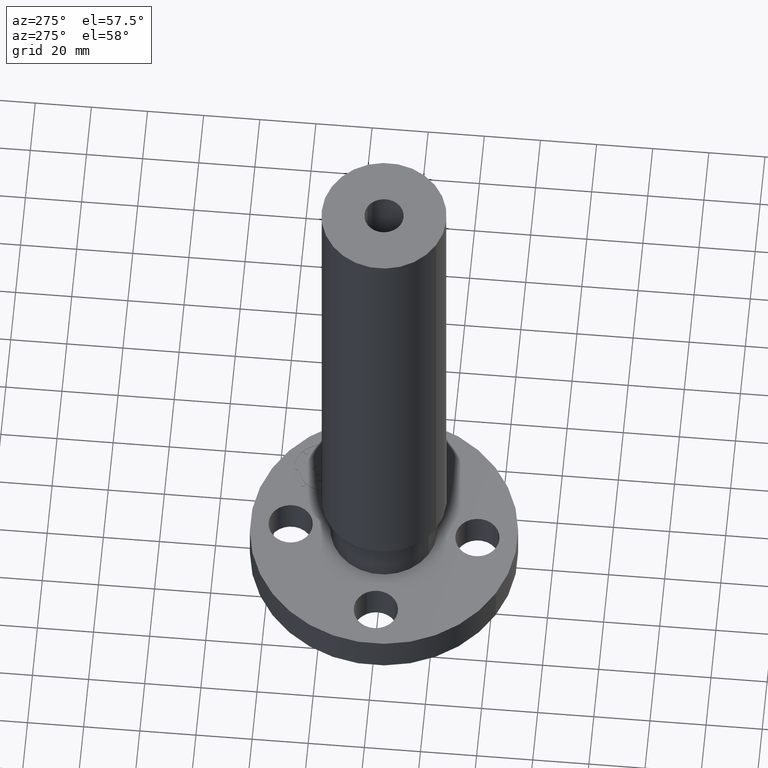
[diagram: clean part render]
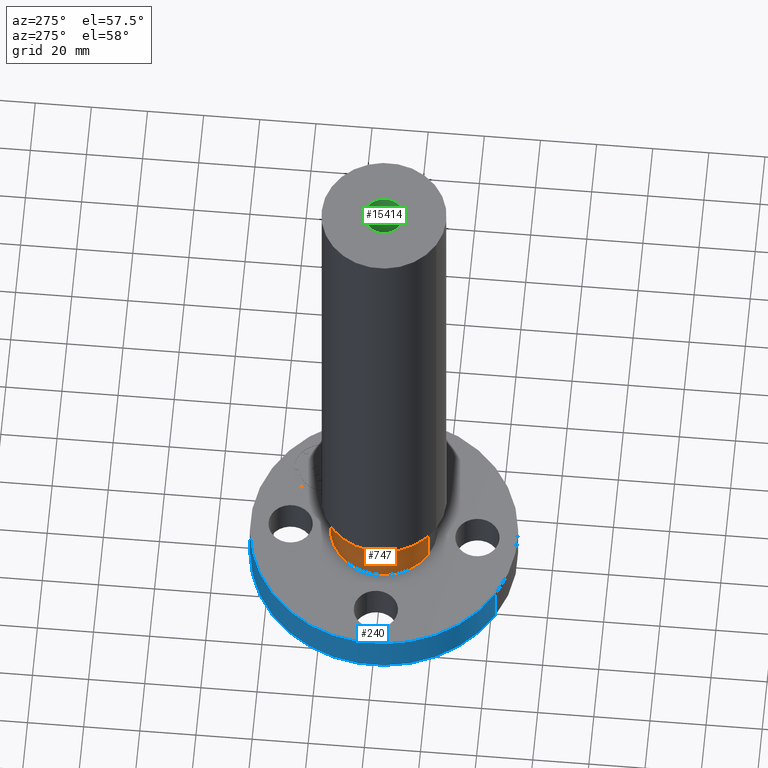
[diagram: same view with three faces highlighted in distinct colors, each labeled with its STEP entity id]
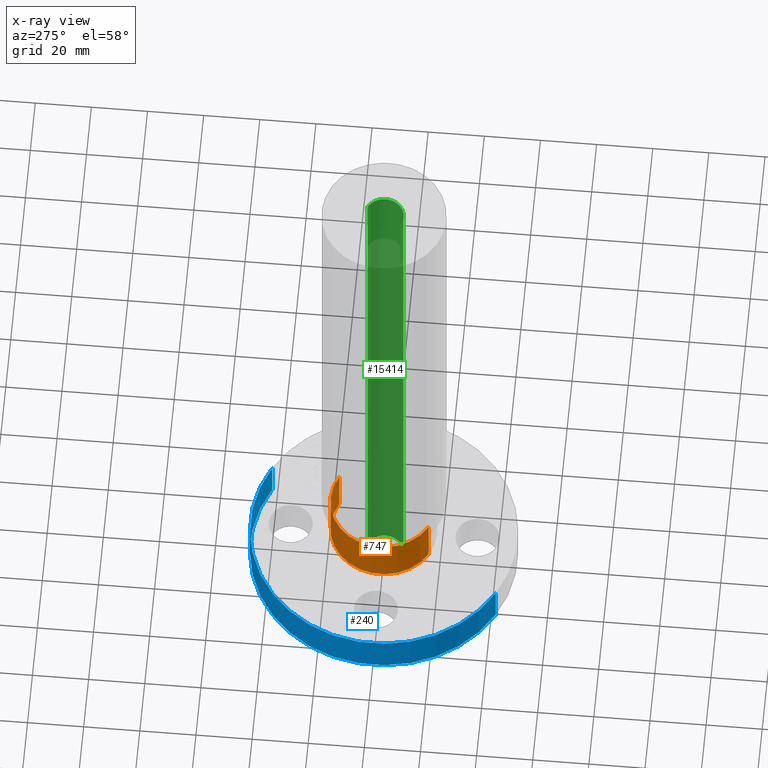
[diagram: x-ray of the same camera — body ghosted, the three highlighted faces saturated]
A machine part, auxiliary view with three faces highlighted in distinct colors.
The next image is the same camera in x-ray (body ghosted, the three faces saturated) — at least one of them is partly hidden behind the body in this view.
Their STEP definitions:

[orange] entity #747 — the highlighted cylindrical surface (partial cylindrical patch) has radius 19.05 mm, axis along (0, 0, -1).
#516=AXIS2_PLACEMENT_3D('Circle Axis2P3D',#514,#515,$) ;
#708=AXIS2_PLACEMENT_3D('Cylinder Axis2P3D',#705,#706,#707) ;
#738=AXIS2_PLACEMENT_3D('Circle Axis2P3D',#736,#737,$) ;
#492=CARTESIAN_POINT('Vertex',(0.359569153955,0.65818692142,0.600980762116)) ;
#499=CARTESIAN_POINT('Vertex',(-0.359569153955,-0.65818692142,0.600980762116)) ;
#514=CARTESIAN_POINT('Axis2P3D Location',(0.,0.,0.600980762116)) ;
#705=CARTESIAN_POINT('Axis2P3D Location',(0.,0.,4.25000000002)) ;
#710=CARTESIAN_POINT('Line Origine',(0.359569153955,0.65818692142,0.955490381061)) ;
#714=CARTESIAN_POINT('Vertex',(0.359569153955,0.65818692142,1.31000000001)) ;
#721=CARTESIAN_POINT('Vertex',(-0.359569153955,-0.65818692142,1.31000000001)) ;
#724=CARTESIAN_POINT('Line Origine',(-0.359569153955,-0.65818692142,0.955490381061)) ;
#736=CARTESIAN_POINT('Axis2P3D Location',(0.,0.,1.31000000001)) ;
#515=DIRECTION('Axis2P3D Direction',(-0.,0.,0.0393700787402)) ;
#706=DIRECTION('Axis2P3D Direction',(0.,0.,-0.0393700787402)) ;
#707=DIRECTION('Axis2P3D XDirection',(-0.0188750212049,-0.0345504945626,0.)) ;
#711=DIRECTION('Vector Direction',(0.,0.,-0.0393700787402)) ;
#725=DIRECTION('Vector Direction',(0.,0.,-0.0393700787402)) ;
#737=DIRECTION('Axis2P3D Direction',(0.,0.,-0.0393700787402)) ;
#712=VECTOR('Line Direction',#711,0.0393700787402) ;
#726=VECTOR('Line Direction',#725,0.0393700787402) ;
#742=ORIENTED_EDGE('',*,*,#518,.F.) ;
#743=ORIENTED_EDGE('',*,*,#728,.T.) ;
#744=ORIENTED_EDGE('',*,*,#740,.T.) ;
#745=ORIENTED_EDGE('',*,*,#716,.F.) ;
#747=ADVANCED_FACE('PartBody',(#746),#709,.T.) ;
#517=CIRCLE('generated circle',#516,0.750000000003) ;
#739=CIRCLE('generated circle',#738,0.750000000003) ;
#709=CYLINDRICAL_SURFACE('generated cylinder',#708,0.750000000003) ;
#518=EDGE_CURVE('',#500,#493,#517,.F.) ;
#716=EDGE_CURVE('',#493,#715,#713,.F.) ;
#728=EDGE_CURVE('',#500,#722,#727,.F.) ;
#740=EDGE_CURVE('',#722,#715,#739,.T.) ;
#741=EDGE_LOOP('',(#742,#743,#744,#745)) ;
#746=FACE_OUTER_BOUND('',#741,.T.) ;
#713=LINE('Line',#710,#712) ;
#727=LINE('Line',#724,#726) ;
#493=VERTEX_POINT('',#492) ;
#500=VERTEX_POINT('',#499) ;
#715=VERTEX_POINT('',#714) ;
#722=VERTEX_POINT('',#721) ;

[blue] entity #240 — the highlighted cylindrical surface (partial cylindrical patch) has radius 47.625 mm, axis along (0, 0, -1).
#108=AXIS2_PLACEMENT_3D('Circle Axis2P3D',#106,#107,$) ;
#213=AXIS2_PLACEMENT_3D('Cylinder Axis2P3D',#210,#211,#212) ;
#217=AXIS2_PLACEMENT_3D('Circle Axis2P3D',#215,#216,$) ;
#101=CARTESIAN_POINT('Vertex',(0.898922884886,1.64546730355,0.560000000002)) ;
#103=CARTESIAN_POINT('Vertex',(-0.898922884886,-1.64546730355,0.560000000002)) ;
#106=CARTESIAN_POINT('Axis2P3D Location',(0.,0.,0.560000000002)) ;
#210=CARTESIAN_POINT('Axis2P3D Location',(0.,0.,4.25000000002)) ;
#215=CARTESIAN_POINT('Axis2P3D Location',(0.,0.,0.)) ;
#219=CARTESIAN_POINT('Vertex',(-0.898922884886,-1.64546730355,0.)) ;
#221=CARTESIAN_POINT('Vertex',(0.898922884886,1.64546730355,0.)) ;
#224=CARTESIAN_POINT('Line Origine',(-0.898922884886,-1.64546730355,0.280000000001)) ;
#229=CARTESIAN_POINT('Line Origine',(0.898922884886,1.64546730355,0.280000000001)) ;
#107=DIRECTION('Axis2P3D Direction',(0.,0.,-0.0393700787402)) ;
#211=DIRECTION('Axis2P3D Direction',(0.,0.,-0.0393700787402)) ;
#212=DIRECTION('Axis2P3D XDirection',(0.0188750212049,0.0345504945626,0.)) ;
#216=DIRECTION('Axis2P3D Direction',(0.,0.,-0.0393700787402)) ;
#225=DIRECTION('Vector Direction',(0.,0.,-0.0393700787402)) ;
#230=DIRECTION('Vector Direction',(0.,0.,-0.0393700787402)) ;
#226=VECTOR('Line Direction',#225,0.0393700787402) ;
#231=VECTOR('Line Direction',#230,0.0393700787402) ;
#235=ORIENTED_EDGE('',*,*,#223,.F.) ;
#236=ORIENTED_EDGE('',*,*,#228,.T.) ;
#237=ORIENTED_EDGE('',*,*,#110,.T.) ;
#238=ORIENTED_EDGE('',*,*,#233,.F.) ;
#240=ADVANCED_FACE('PartBody',(#239),#214,.T.) ;
#109=CIRCLE('generated circle',#108,1.87500000001) ;
#218=CIRCLE('generated circle',#217,1.87500000001) ;
#214=CYLINDRICAL_SURFACE('generated cylinder',#213,1.87500000001) ;
#110=EDGE_CURVE('',#104,#102,#109,.T.) ;
#223=EDGE_CURVE('',#220,#222,#218,.T.) ;
#228=EDGE_CURVE('',#220,#104,#227,.F.) ;
#233=EDGE_CURVE('',#222,#102,#232,.F.) ;
#234=EDGE_LOOP('',(#235,#236,#237,#238)) ;
#239=FACE_OUTER_BOUND('',#234,.T.) ;
#227=LINE('Line',#224,#226) ;
#232=LINE('Line',#229,#231) ;
#102=VERTEX_POINT('',#101) ;
#104=VERTEX_POINT('',#103) ;
#220=VERTEX_POINT('',#219) ;
#222=VERTEX_POINT('',#221) ;

[green] entity #15414 — the highlighted cylindrical surface (edge-blend (fillet) strip) has radius 6.985 mm, axis along (0, 0, -1).
#14958=AXIS2_PLACEMENT_3D('Circle Axis2P3D',#14956,#14957,$) ;
#15387=AXIS2_PLACEMENT_3D('Cylinder Axis2P3D',#15384,#15385,#15386) ;
#15391=AXIS2_PLACEMENT_3D('Circle Axis2P3D',#15389,#15390,$) ;
#14951=CARTESIAN_POINT('Vertex',(-0.131842023117,-0.241335204521,8.75000000004)) ;
#14953=CARTESIAN_POINT('Vertex',(0.131842023117,0.241335204521,8.75000000004)) ;
#14956=CARTESIAN_POINT('Axis2P3D Location',(0.,0.,8.75000000003)) ;
#15384=CARTESIAN_POINT('Axis2P3D Location',(0.,0.,4.25000000002)) ;
#15389=CARTESIAN_POINT('Axis2P3D Location',(0.,0.,0.)) ;
#15393=CARTESIAN_POINT('Vertex',(-0.131842023117,-0.241335204521,0.)) ;
#15395=CARTESIAN_POINT('Vertex',(0.131842023117,0.241335204521,0.)) ;
#15398=CARTESIAN_POINT('Line Origine',(-0.131842023117,-0.241335204521,4.37500000002)) ;
#15403=CARTESIAN_POINT('Line Origine',(0.131842023117,0.241335204521,4.37500000002)) ;
#14957=DIRECTION('Axis2P3D Direction',(0.,0.,-0.0393700787402)) ;
#15385=DIRECTION('Axis2P3D Direction',(0.,0.,-0.0393700787402)) ;
#15386=DIRECTION('Axis2P3D XDirection',(-0.0188750212049,-0.0345504945626,0.)) ;
#15390=DIRECTION('Axis2P3D Direction',(0.,0.,-0.0393700787402)) ;
#15399=DIRECTION('Vector Direction',(0.,0.,-0.0393700787402)) ;
#15404=DIRECTION('Vector Direction',(0.,0.,-0.0393700787402)) ;
#15400=VECTOR('Line Direction',#15399,0.0393700787402) ;
#15405=VECTOR('Line Direction',#15404,0.0393700787402) ;
#15409=ORIENTED_EDGE('',*,*,#15397,.F.) ;
#15410=ORIENTED_EDGE('',*,*,#15402,.F.) ;
#15411=ORIENTED_EDGE('',*,*,#14960,.F.) ;
#15412=ORIENTED_EDGE('',*,*,#15407,.T.) ;
#15414=ADVANCED_FACE('PartBody',(#15413),#15388,.F.) ;
#14959=CIRCLE('generated circle',#14958,0.275000000001) ;
#15392=CIRCLE('generated circle',#15391,0.275000000001) ;
#15388=CYLINDRICAL_SURFACE('generated cylinder',#15387,0.275000000001) ;
#14960=EDGE_CURVE('',#14954,#14952,#14959,.T.) ;
#15397=EDGE_CURVE('',#15394,#15396,#15392,.F.) ;
#15402=EDGE_CURVE('',#14952,#15394,#15401,.T.) ;
#15407=EDGE_CURVE('',#14954,#15396,#15406,.T.) ;
#15408=EDGE_LOOP('',(#15409,#15410,#15411,#15412)) ;
#15413=FACE_OUTER_BOUND('',#15408,.T.) ;
#15401=LINE('Line',#15398,#15400) ;
#15406=LINE('Line',#15403,#15405) ;
#14952=VERTEX_POINT('',#14951) ;
#14954=VERTEX_POINT('',#14953) ;
#15394=VERTEX_POINT('',#15393) ;
#15396=VERTEX_POINT('',#15395) ;